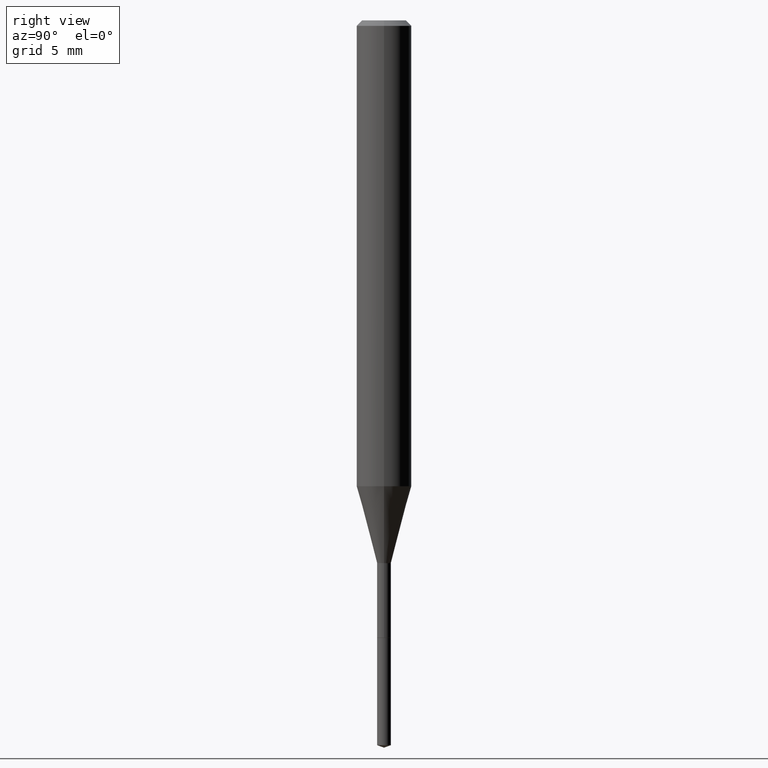
[diagram: clean part render]
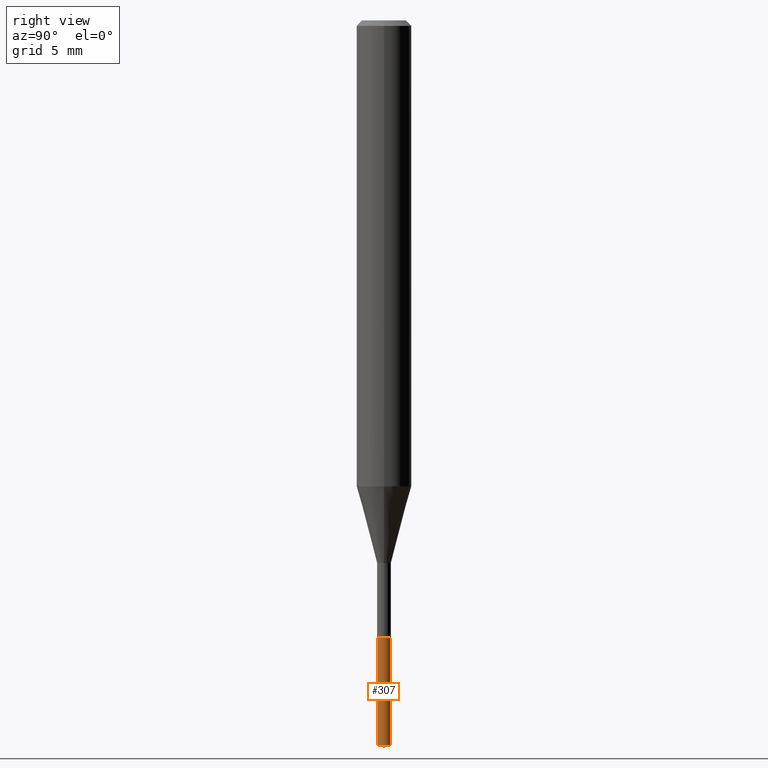
[diagram: same view with one face highlighted and labeled with its STEP entity id]
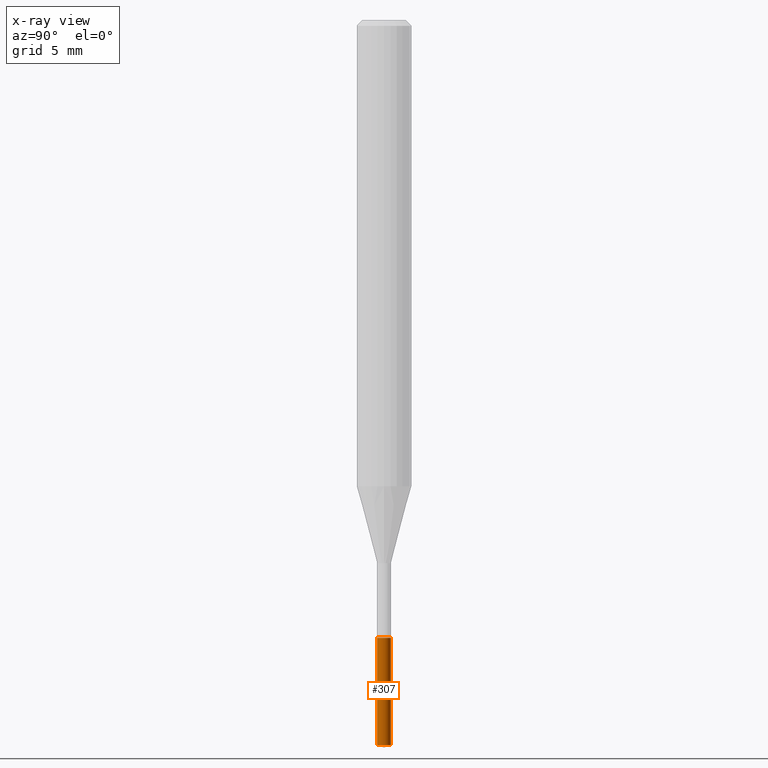
[diagram: x-ray of the same camera — body ghosted, the highlighted face saturated]
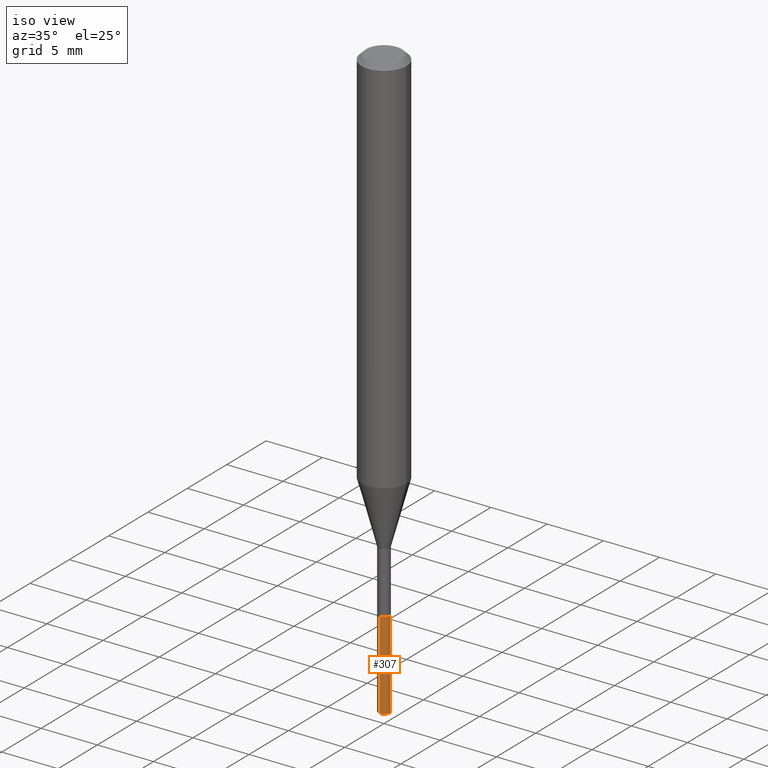
[diagram: same view with one face highlighted and labeled with its STEP entity id]
A machine part, right view. The second image highlights one B-rep face of the part: STEP entity #307.
The next image is the same camera in x-ray: the body ghosted, the highlighted face saturated — about 0% of this face is hidden behind the body in this view.
A second angle (iso view) of the same face is appended — the face is thin or edge-on in the first view.
In plain terms, the highlighted cylindrical surface (edge-blend (fillet) strip) has radius 0.5004 mm, axis along (-0, 0, 1).
Its self-contained STEP definition (entity closure, byte-faithful):
#3 = DIRECTION ( 'NONE',  ( -2.447544919143617491E-29, 3.488508226921589715E-15, 1.000000000000000000 ) ) ;
#6 = CARTESIAN_POINT ( 'NONE',  ( 5.085819766665152108E-29, -7.259375082189951371E-15, -2.079429786384956014 ) ) ;
#11 = AXIS2_PLACEMENT_3D ( 'NONE', #40, #3, #82 ) ;
#19 = ORIENTED_EDGE ( 'NONE', *, *, #303, .T. ) ;
#40 = CARTESIAN_POINT ( 'NONE',  ( 4.332392537037587642E-29, -6.185508339894515992E-15, -1.771599999999999842 ) ) ;
#43 = AXIS2_PLACEMENT_3D ( 'NONE', #6, #355, #81 ) ;
#45 = ORIENTED_EDGE ( 'NONE', *, *, #386, .T. ) ;
#54 = VECTOR ( 'NONE', #228, 39.37007874015748143 ) ;
#65 = CIRCLE ( 'NONE', #118, 0.01969999999999999876 ) ;
#81 = DIRECTION ( 'NONE',  ( -6.982962677686265133E-15, -1.000000000000000000, 0.000000000000000000 ) ) ;
#82 = DIRECTION ( 'NONE',  ( -6.982962677686265133E-15, -1.000000000000000000, 0.000000000000000000 ) ) ;
#109 = CARTESIAN_POINT ( 'NONE',  ( 1.399769189447829919E-16, 0.01969999999999381274, -1.771599999999999842 ) ) ;
#112 = VECTOR ( 'NONE', #305, 39.37007874015748143 ) ;
#118 = AXIS2_PLACEMENT_3D ( 'NONE', #462, #311, #450 ) ;
#122 = VERTEX_POINT ( 'NONE', #211 ) ;
#156 = VERTEX_POINT ( 'NONE', #413 ) ;
#158 = VERTEX_POINT ( 'NONE', #405 ) ;
#183 = VERTEX_POINT ( 'NONE', #410 ) ;
#188 = LINE ( 'NONE', #109, #112 ) ;
#192 = CIRCLE ( 'NONE', #43, 0.01969999999999999876 ) ;
#211 = CARTESIAN_POINT ( 'NONE',  ( -1.375643647503760982E-16, -0.01970000000000618132, -1.771599999999999842 ) ) ;
#228 = DIRECTION ( 'NONE',  ( -2.447544919143617491E-29, 3.488508226921589321E-15, 1.000000000000000000 ) ) ;
#231 = EDGE_LOOP ( 'NONE', ( #45, #19, #266, #356 ) ) ;
#266 = ORIENTED_EDGE ( 'NONE', *, *, #294, .F. ) ;
#294 = EDGE_CURVE ( 'NONE', #122, #156, #65, .T. ) ;
#303 = EDGE_CURVE ( 'NONE', #183, #156, #188, .T. ) ;
#305 = DIRECTION ( 'NONE',  ( -2.447544919143617491E-29, 3.488508226921589321E-15, 1.000000000000000000 ) ) ;
#307 = ADVANCED_FACE ( 'NONE', ( #348 ), #458, .T. ) ;
#311 = DIRECTION ( 'NONE',  ( -2.447544919143617491E-29, 3.488508226921589715E-15, 1.000000000000000000 ) ) ;
#348 = FACE_OUTER_BOUND ( 'NONE', #231, .T. ) ;
#355 = DIRECTION ( 'NONE',  ( -2.447544919143617491E-29, 3.488508226921589715E-15, 1.000000000000000000 ) ) ;
#356 = ORIENTED_EDGE ( 'NONE', *, *, #426, .F. ) ;
#386 = EDGE_CURVE ( 'NONE', #158, #183, #192, .T. ) ;
#390 = LINE ( 'NONE', #416, #54 ) ;
#405 = CARTESIAN_POINT ( 'NONE',  ( -1.375643647503685547E-16, -0.01970000000000725338, -2.079429786384956014 ) ) ;
#410 = CARTESIAN_POINT ( 'NONE',  ( 1.399769189447905600E-16, 0.01969999999999273374, -2.079429786384956014 ) ) ;
#413 = CARTESIAN_POINT ( 'NONE',  ( 1.399769189447906093E-16, 0.01969999999999381274, -1.771599999999999842 ) ) ;
#416 = CARTESIAN_POINT ( 'NONE',  ( -1.375643647503760982E-16, -0.01970000000000618132, -1.771599999999999842 ) ) ;
#426 = EDGE_CURVE ( 'NONE', #158, #122, #390, .T. ) ;
#450 = DIRECTION ( 'NONE',  ( -6.982962677686265133E-15, -1.000000000000000000, 0.000000000000000000 ) ) ;
#458 = CYLINDRICAL_SURFACE ( 'NONE', #11, 0.01969999999999999876 ) ;
#462 = CARTESIAN_POINT ( 'NONE',  ( 4.332392537037587642E-29, -6.185508339894515992E-15, -1.771599999999999842 ) ) ;